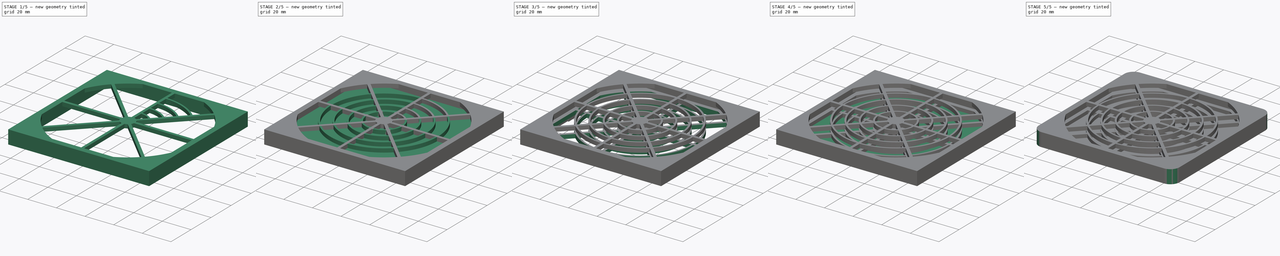
[diagram: build sequence overview — one tinted view per stage of 5, left to right]
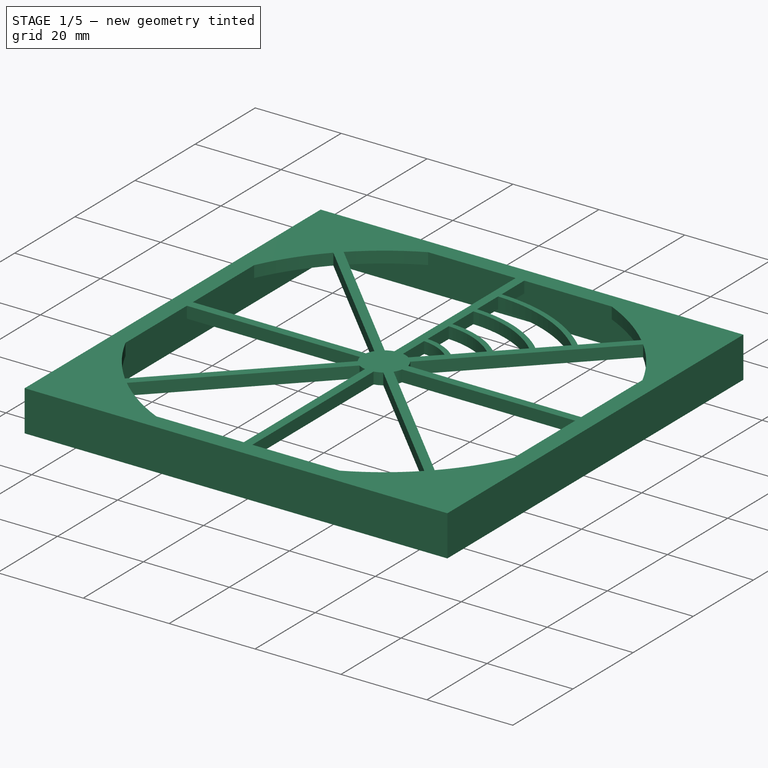
[diagram: stage 1 of 5 — iso view after this stage's code; geometry added in this stage tinted green]
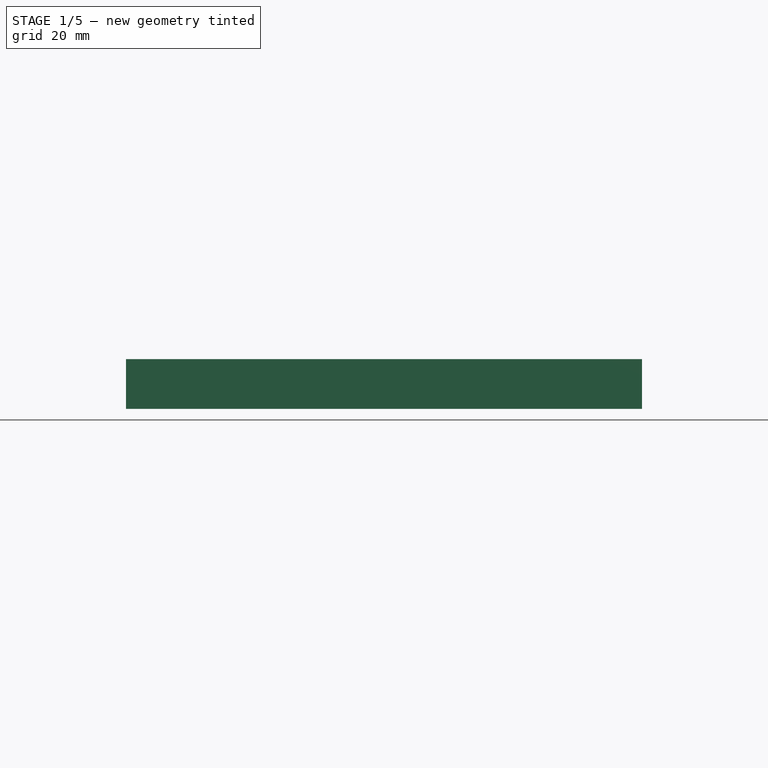
[diagram: stage 1 of 5 — front view after this stage's code; geometry added in this stage tinted green]
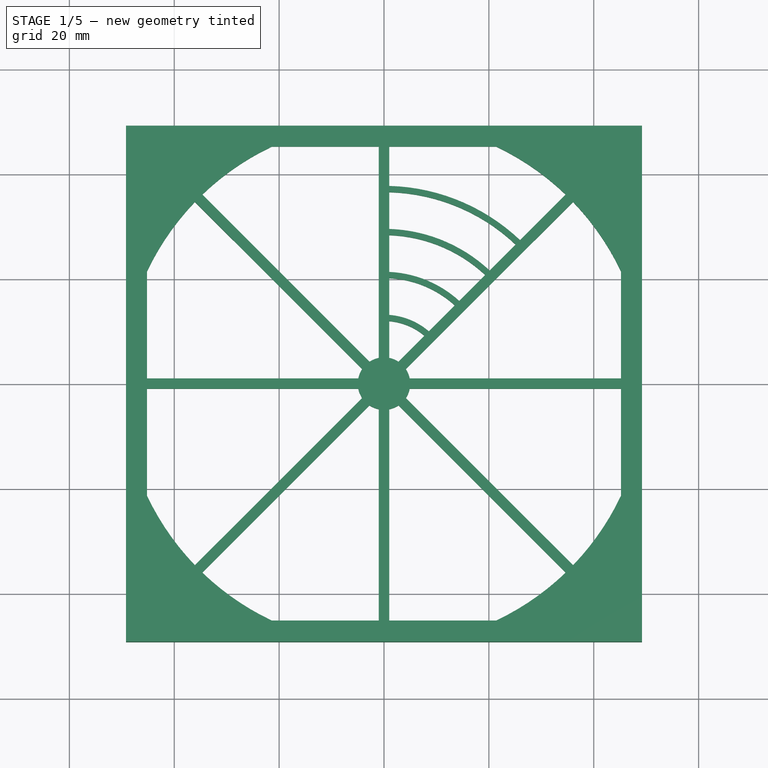
[diagram: stage 1 of 5 — top view after this stage's code; geometry added in this stage tinted green]
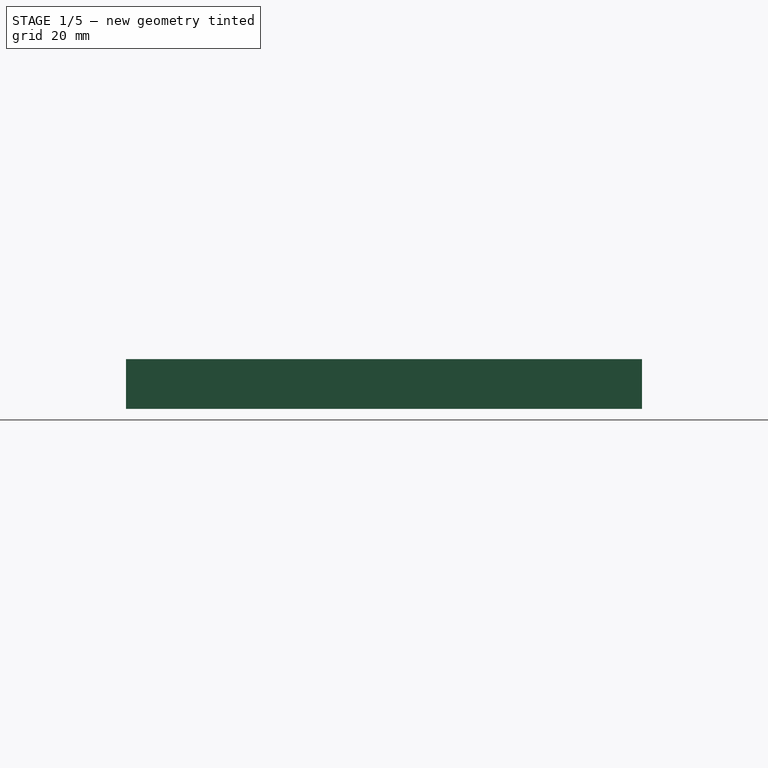
[diagram: stage 1 of 5 — right view after this stage's code; geometry added in this stage tinted green]
FCSTD DOCUMENT  (FreeCAD 0.20R)
Label: FAN_FILTER_92mm
License: Public Domain
LicenseURL: http://en.wikipedia.org/wiki/Public_domain
objects: Sketcher::SketchObject×13, PartDesign::Pad×7, PartDesign::PolarPattern×7, PartDesign::Pocket×6, PartDesign::Fillet×4, PartDesign::Body×3, PartDesign::Chamfer×2, App::Part×1
note: 61 computed .brp shape members not serialized (recipe doc carries the construction recipe); baked Part::Feature solids carry a one-line shape summary decoded from their .brp

FEATURE [PartDesign::Body] Body300  label="Base"
  Group = -> [Sketch1066,Pad527,Sketch1067,Pocket512,Sketch1068,Pocket513,PolarPattern027,Sketch1069,Pad528,PolarPattern029,Sketch1070,Pocket514,Sketch1071,Pad529,PolarPattern030,Chamfer173,Fillet180]
  Origin = -> Origin524
  Tip = -> Fillet180
FEATURE [Sketcher::SketchObject] Sketch1072
  FullyConstrained = true
  MapMode = 5
  Support = -> [XY_Plane526]
  sketch-geometry (6):
    g0: LineSegment StartX=-49.2 StartY=49.2 StartZ=0 EndX=-49.2 EndY=-49.2 EndZ=0
    g1: LineSegment StartX=-49.2 StartY=-49.2 StartZ=0 EndX=49.2 EndY=-49.2 EndZ=0
    g2: LineSegment StartX=49.2 StartY=-49.2 StartZ=0 EndX=49.2 EndY=49.2 EndZ=0
    g3: LineSegment StartX=49.2 StartY=49.2 StartZ=0 EndX=-49.2 EndY=49.2 EndZ=0
    g4: GeomPoint X=0 Y=0 Z=0
    g5: GeomPoint X=0 Y=0 Z=0
  constraints (13):
    c: Coincident(g0,g1)
    c: Coincident(g1,g2)
    c: Coincident(g2,g3)
    c: Coincident(g3,g0)
    c: Horizontal(g1)
    c: Horizontal(g3)
    c: Vertical(g0)
    c: Vertical(g2)
    c: Symmetric(g1,g0,g4)
    c: Coincident(g4,g-1)
    c: Equal(g2,g3)
    c: DistanceY(g2,g2) = 98.4
    c: Coincident(g5,g4)
FEATURE [PartDesign::Pad] Pad526
  Direction = (0,0,1)
  Length = 9.5
  Length2 = 10
  Profile = -> Sketch1072
  ReferenceAxis = -> Sketch1072 [N_Axis]
  Type = 0
FEATURE [Sketcher::SketchObject] Sketch1073
  ExternalGeometry = -> [Pad526]
  FullyConstrained = true
  MapMode = 5
  Placement = pos=(0,0,0) rot=(1,0,0;3.14159rad)
  Support = -> [Pad526]
  sketch-geometry (4):
    g0: LineSegment StartX=-47.2 StartY=47.2 StartZ=0 EndX=0 EndY=47.2 EndZ=0
    g1: LineSegment StartX=-47.2 StartY=0 StartZ=0 EndX=-47.2 EndY=47.2 EndZ=0
    g2: LineSegment StartX=-47.2 StartY=0 StartZ=0 EndX=0 EndY=0 EndZ=0
    g3: LineSegment StartX=0 StartY=47.2 StartZ=0 EndX=0 EndY=0 EndZ=0
  constraints (11):
    c: Horizontal(g0)
    c: Coincident(g1,g0)
    c: Equal(g1,g0)
    c: PointOnObject(g3,g-2)
    c: PointOnObject(g2,g-1)
    c: Coincident(g2,g-1)
    c: Coincident(g3,g2)
    c: Equal(g2,g3)
    c: DistanceX(g-3,g0) = 2
    c: Coincident(g1,g2)
    c: Coincident(g0,g3)
FEATURE [PartDesign::Pocket] Pocket515  label="Бортик005"
  BaseFeature = -> Pad526
  Direction = (0,0,1)
  Length = 6.8
  Length2 = 5
  Profile = -> Sketch1073
  ReferenceAxis = -> Sketch1073 [N_Axis]
  Type = 0
FEATURE [Sketcher::SketchObject] Sketch1074
  ExternalGeometry = -> [Pocket515]
  FullyConstrained = true
  MapMode = 5
  Placement = pos=(0,0,0) rot=(0,1,0;3.14159rad)
  Support = -> [XY_Plane526]
  sketch-geometry (12):
    g0: ArcOfCircle CenterX=0 CenterY=0 CenterZ=0 NormalX=0 NormalY=0 NormalZ=1 AngleXU=0 Radius=50 StartAngle=5.15415 EndAngle=5.47779
    g1: LineSegment StartX=4.89898 StartY=-1 StartZ=0 EndX=45.2 EndY=-1 EndZ=0
    g2: LineSegment StartX=45.2 StartY=-1 StartZ=0 EndX=45.2 EndY=-21.3766 EndZ=0
    g3: LineSegment StartX=21.3766 StartY=-45.2 StartZ=0 EndX=1 EndY=-45.2 EndZ=0
    g4: LineSegment StartX=1 StartY=-4.89898 StartZ=0 EndX=1 EndY=-45.2 EndZ=0
    g5: ArcOfCircle CenterX=0 CenterY=0 CenterZ=0 NormalX=0 NormalY=0 NormalZ=1 AngleXU=0 Radius=5 StartAngle=4.91375 EndAngle=5.29643
    g6: LineSegment StartX=2.75699 StartY=-4.17121 StartZ=0 EndX=34.6412 EndY=-36.0554 EndZ=0
    g7: LineSegment StartX=4.17121 StartY=-2.75699 StartZ=0 EndX=36.0554 EndY=-34.6412 EndZ=0
    g8: ArcOfCircle CenterX=0 CenterY=0 CenterZ=0 NormalX=0 NormalY=0 NormalZ=1 AngleXU=0 Radius=5 StartAngle=5.69915 EndAngle=6.08183
    g9: ArcOfCircle CenterX=0 CenterY=0 CenterZ=0 NormalX=0 NormalY=0 NormalZ=1 AngleXU=0 Radius=50 StartAngle=5.51779 EndAngle=5.84142
    g10: LineSegment StartX=0 StartY=0 StartZ=0 EndX=35.3483 EndY=-35.3483 EndZ=0
    g11: LineSegment StartX=34.6412 StartY=-36.0554 StartZ=0 EndX=36.0554 EndY=-34.6412 EndZ=0
  constraints (34):
    c: Coincident(g0,g-1)
    c: Coincident(g2,g1)
    c: Coincident(g2,g9)
    c: Vertical(g2)
    c: Coincident(g3,g0)
    c: Horizontal(g3)
    c: Coincident(g4,g3)
    c: Radius(g0) = 50
    c: Coincident(g5,g0)
    c: Coincident(g4,g5)
    c: Coincident(g1,g8)
    c: Radius(g5) = 5
    c: Equal(g1,g4)
    c: Vertical(g4)
    c: DistanceX(g0,g4) = 1
    c: Horizontal(g1)
    c: Equal(g3,g2)
    c: Parallel(g6,g7)
    c: Equal(g5,g8)
    c: Coincident(g5,g6)
    c: Coincident(g8,g7)
    c: Coincident(g5,g8)
    c: Coincident(g0,g6)
    c: Coincident(g9,g7)
    c: Coincident(g0,g9)
    c: Distance(g0,g7) = 2
    c: Coincident(g10,g0)
    c: Angle(g10) = -0.785398
    c: Symmetric(g0,g7,g10)
    c: Coincident(g11,g0)
    c: Coincident(g11,g7)
    c: Perpendicular(g10,g11)
    c: Parallel(g10,g7)
    c: DistanceX(g1,g-3) = 2
FEATURE [PartDesign::Pocket] Pocket511  label="Вырез сектора004"
  BaseFeature = -> Pocket515
  Direction = (0,0,1)
  Length = 5
  Length2 = 5
  Profile = -> Sketch1074
  ReferenceAxis = -> Sketch1074 [N_Axis]
  Refine = true
  Type = 1
FEATURE [PartDesign::PolarPattern] PolarPattern028
  Angle = 360
  Axis = -> Sketch1073 [N_Axis]
  BaseFeature = -> Pocket511
  Occurrences = 4
  Originals = -> [Pocket515,Pocket511]
  Refine = true
FEATURE [Sketcher::SketchObject] Sketch1075
  ExternalGeometry = -> [PolarPattern028]
  FullyConstrained = true
  MapMode = 5
  Placement = pos=(0,0,6.8) rot=(1,0,0;3.14159rad)
  Support = -> [PolarPattern028]
  sketch-geometry (20):
    g0: ArcOfCircle CenterX=0 CenterY=0 CenterZ=0 NormalX=0 NormalY=0 NormalZ=1 AngleXU=0 Radius=20.1238 StartAngle=4.7621 EndAngle=5.44807
    g1: ArcOfCircle CenterX=0 CenterY=0 CenterZ=0 NormalX=0 NormalY=0 NormalZ=1 AngleXU=0 Radius=21.3224 StartAngle=4.75931 EndAngle=5.45087
    g2: ArcOfCircle CenterX=0 CenterY=0 CenterZ=0 NormalX=0 NormalY=0 NormalZ=1 AngleXU=0 Radius=28.3166 StartAngle=4.74771 EndAngle=5.46246
    g3: ArcOfCircle CenterX=0 CenterY=0 CenterZ=0 NormalX=0 NormalY=0 NormalZ=1 AngleXU=0 Radius=29.5159 StartAngle=4.74628 EndAngle=5.4639
    g4: ArcOfCircle CenterX=0 CenterY=0 CenterZ=0 NormalX=0 NormalY=0 NormalZ=1 AngleXU=0 Radius=36.5127 StartAngle=4.73978 EndAngle=5.4704
    g5: ArcOfCircle CenterX=0 CenterY=0 CenterZ=0 NormalX=0 NormalY=0 NormalZ=1 AngleXU=0 Radius=37.7122 StartAngle=4.73891 EndAngle=5.47127
    g6: LineSegment StartX=1 StartY=-20.099 StartZ=0 EndX=1 EndY=-21.299 EndZ=0
    g7: LineSegment StartX=13.505 StartY=-14.9192 StartZ=0 EndX=14.3535 EndY=-15.7678 EndZ=0
    g8: LineSegment StartX=1 StartY=-28.299 StartZ=0 EndX=1 EndY=-29.499 EndZ=0
    g9: LineSegment StartX=19.3033 StartY=-20.7175 StartZ=0 EndX=20.1518 EndY=-21.566 EndZ=0
    g10: LineSegment StartX=1 StartY=-36.499 StartZ=0 EndX=1 EndY=-37.699 EndZ=0
    g11: LineSegment StartX=25.1016 StartY=-26.5158 StartZ=0 EndX=25.9501 EndY=-27.3643 EndZ=0
    g12: LineSegment StartX=1 StartY=-21.299 StartZ=0 EndX=1 EndY=-28.299 EndZ=0
    g13: LineSegment StartX=1 StartY=-29.499 StartZ=0 EndX=1 EndY=-36.499 EndZ=0
    g14: ArcOfCircle CenterX=0 CenterY=0 CenterZ=0 NormalX=0 NormalY=0 NormalZ=1 AngleXU=0 Radius=13.1371 StartAngle=4.78858 EndAngle=5.42159
    g15: ArcOfCircle CenterX=0 CenterY=0 CenterZ=0 NormalX=0 NormalY=0 NormalZ=1 AngleXU=0 Radius=11.9409 StartAngle=4.79623 EndAngle=5.41394
    g16: LineSegment StartX=7.70674 StartY=-9.12096 StartZ=0 EndX=8.55527 EndY=-9.96948 EndZ=0
    g17: LineSegment StartX=1 StartY=-13.099 StartZ=0 EndX=1 EndY=-11.899 EndZ=0
    g18: LineSegment StartX=1 StartY=-4.89898 StartZ=0 EndX=1 EndY=-11.899 EndZ=0
    g19: LineSegment StartX=1 StartY=-13.099 StartZ=0 EndX=1 EndY=-20.099 EndZ=0
  constraints (56):
    c: Coincident(g0,g-1)
    c: Coincident(g1,g0)
    c: Coincident(g2,g0)
    c: Coincident(g3,g0)
    c: Coincident(g4,g0)
    c: Coincident(g5,g0)
    c: Coincident(g6,g0)
    c: Coincident(g6,g1)
    c: Coincident(g7,g0)
    c: Coincident(g7,g1)
    c: Coincident(g8,g2)
    c: Coincident(g8,g3)
    c: Coincident(g9,g2)
    c: Coincident(g9,g3)
    c: Coincident(g10,g4)
    c: Coincident(g10,g5)
    c: Coincident(g11,g4)
    c: Coincident(g11,g5)
    c: Equal(g6,g8)
    c: Equal(g8,g10)
    c: DistanceY(g6,g6) = 1.2
    c: Coincident(g12,g1)
    c: Coincident(g12,g2)
    c: Coincident(g13,g3)
    c: Coincident(g13,g4)
    c: Equal(g12,g13)
    c: Vertical(g6)
    c: Vertical(g12)
    c: Vertical(g8)
    c: Vertical(g13)
    c: Vertical(g10)
    c: PointOnObject(g0,g-3)
    c: PointOnObject(g1,g-3)
    c: PointOnObject(g2,g-3)
    c: PointOnObject(g3,g-3)
    c: PointOnObject(g4,g-3)
    c: PointOnObject(g5,g-3)
    c: Coincident(g14,g0)
    c: PointOnObject(g14,g-4)
    c: PointOnObject(g14,g-3)
    c: Coincident(g15,g0)
    c: PointOnObject(g15,g-4)
    c: PointOnObject(g15,g-3)
    c: Coincident(g16,g15)
    c: Coincident(g16,g14)
    c: Coincident(g17,g14)
    c: Coincident(g17,g15)
    c: PointOnObject(g0,g-4)
    c: Equal(g6,g17)
    c: Coincident(g18,g-4)
    c: Coincident(g18,g15)
    c: Coincident(g19,g14)
    c: Coincident(g19,g0)
    c: Equal(g19,g18)
    c: Equal(g12,g19)
    c: DistanceY(g18,g18) = 7
FEATURE [PartDesign::Pad] Pad530  label="Сектор решётки005"
  BaseFeature = -> PolarPattern028
  Direction = (0,0,-1)
  Length = 10
  Length2 = 10
  Profile = -> Sketch1075
  ReferenceAxis = -> Sketch1075 [N_Axis]
  Reversed = true
  Type = 3
  UpToFace = -> PolarPattern028 [Face5]
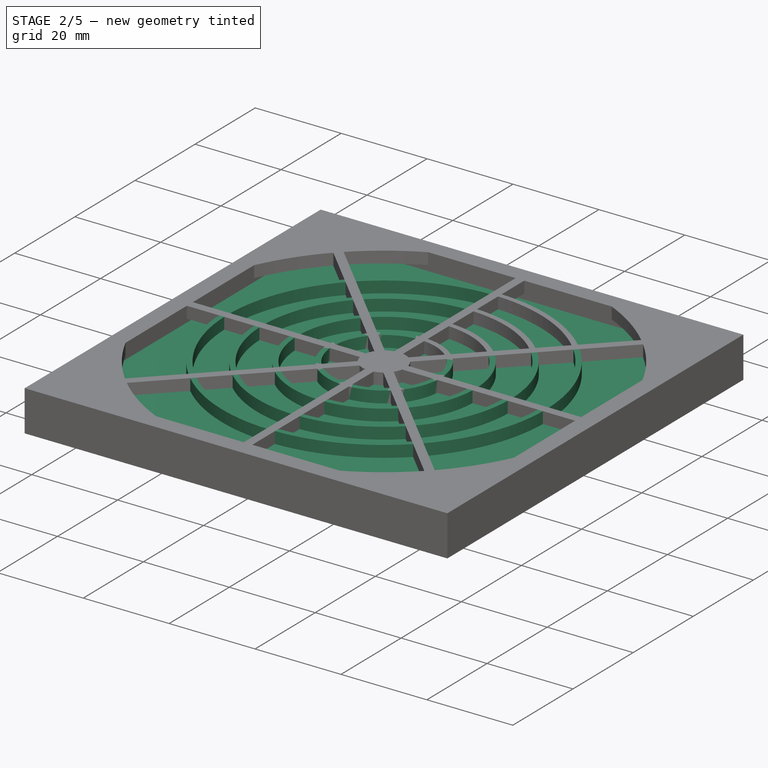
[diagram: stage 2 of 5 — iso view after this stage's code; geometry added in this stage tinted green]
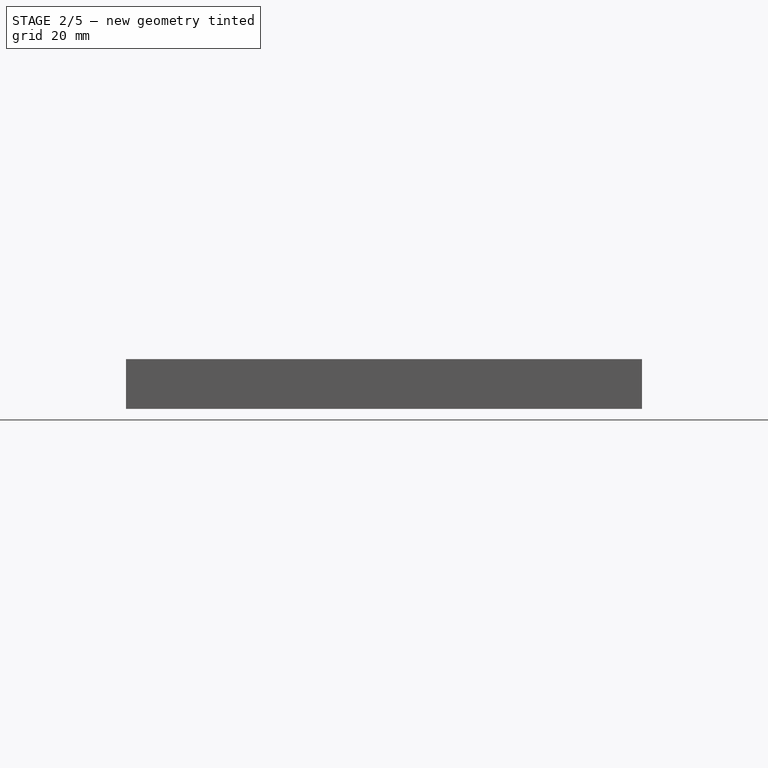
[diagram: stage 2 of 5 — front view after this stage's code; geometry added in this stage tinted green]
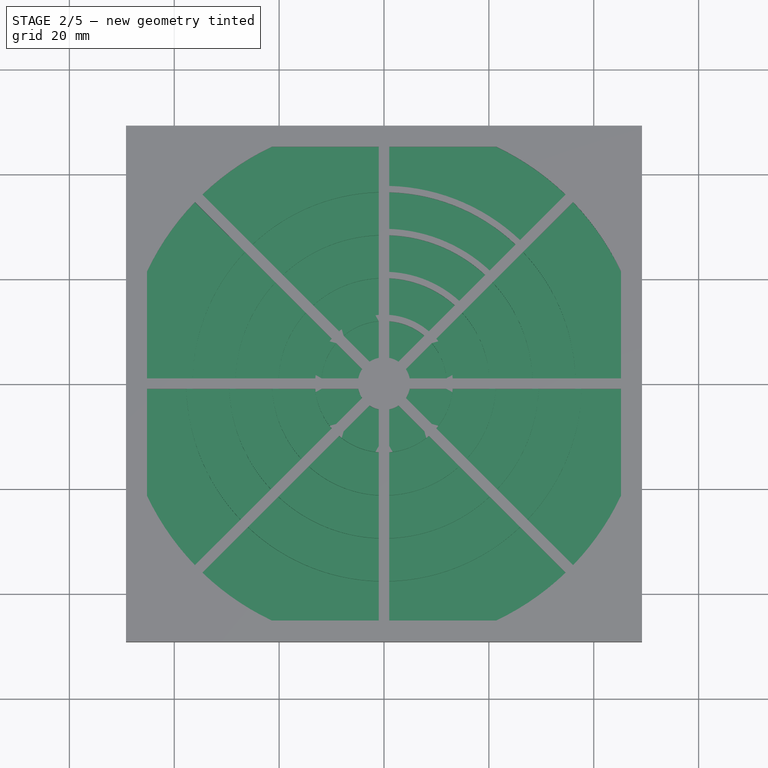
[diagram: stage 2 of 5 — top view after this stage's code; geometry added in this stage tinted green]
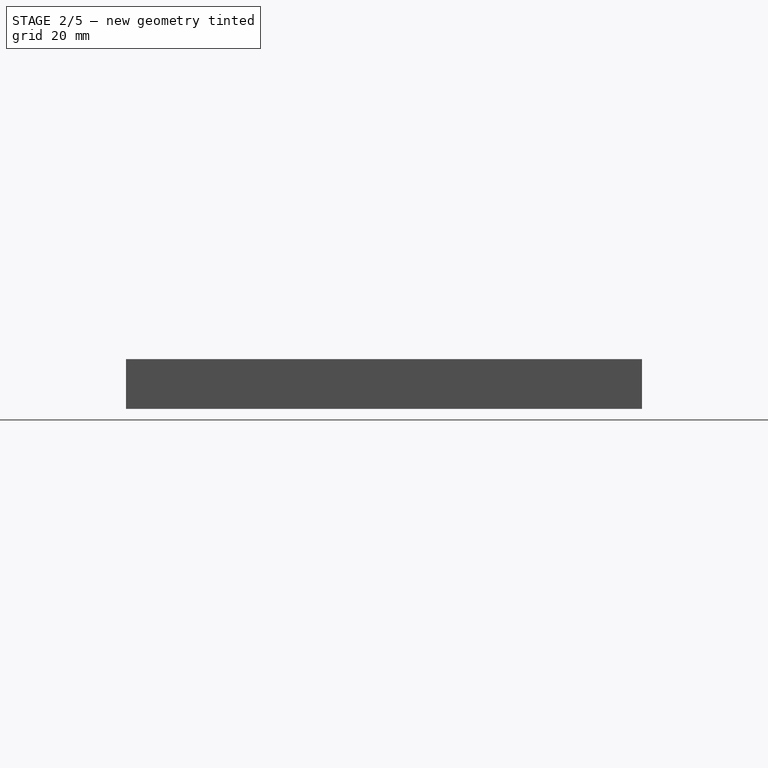
[diagram: stage 2 of 5 — right view after this stage's code; geometry added in this stage tinted green]
FEATURE [Sketcher::SketchObject] Sketch1066
  FullyConstrained = true
  MapMode = 5
  Support = -> [XY_Plane524]
  sketch-geometry (6):
    g0: LineSegment StartX=-47 StartY=47 StartZ=0 EndX=-47 EndY=-47 EndZ=0
    g1: LineSegment StartX=-47 StartY=-47 StartZ=0 EndX=47 EndY=-47 EndZ=0
    g2: LineSegment StartX=47 StartY=-47 StartZ=0 EndX=47 EndY=47 EndZ=0
    g3: LineSegment StartX=47 StartY=47 StartZ=0 EndX=-47 EndY=47 EndZ=0
    g4: GeomPoint X=2e-16 Y=0 Z=0
    g5: GeomPoint X=2e-16 Y=0 Z=0
  constraints (13):
    c: Coincident(g0,g1)
    c: Coincident(g1,g2)
    c: Coincident(g2,g3)
    c: Coincident(g3,g0)
    c: Horizontal(g1)
    c: Horizontal(g3)
    c: Vertical(g0)
    c: Vertical(g2)
    c: Symmetric(g1,g0,g4)
    c: Coincident(g4,g-1)
    c: Equal(g2,g3)
    c: DistanceY(g2,g2) = 94
    c: Coincident(g5,g4)
FEATURE [PartDesign::Pad] Pad527
  Direction = (0,0,1)
  Length = 4.5
  Length2 = 10
  Profile = -> Sketch1066
  ReferenceAxis = -> Sketch1066 [N_Axis]
  Type = 0
FEATURE [Sketcher::SketchObject] Sketch1067
  ExternalGeometry = -> [Pad527]
  FullyConstrained = true
  MapMode = 5
  Placement = pos=(0,0,0) rot=(1,0,0;3.14159rad)
  Support = -> [Pad527]
  sketch-geometry (16):
    g0: LineSegment StartX=-45 StartY=45 StartZ=0 EndX=-8 EndY=45 EndZ=0
    g1: LineSegment StartX=-45 StartY=8 StartZ=0 EndX=-45 EndY=45 EndZ=0
    g2: LineSegment StartX=-45 StartY=8 StartZ=0 EndX=-44.2 EndY=8 EndZ=0
    g3: LineSegment StartX=-8 StartY=45 StartZ=0 EndX=-8 EndY=44.2 EndZ=0
    g4: LineSegment StartX=-8 StartY=44.2 StartZ=0 EndX=0 EndY=44.2 EndZ=0
    g5: LineSegment StartX=-44.2 StartY=8 StartZ=0 EndX=-44.2 EndY=0 EndZ=0
    g6: LineSegment StartX=-44.2 StartY=0 StartZ=0 EndX=0 EndY=0 EndZ=0
    g7: LineSegment StartX=0 StartY=44.2 StartZ=0 EndX=0 EndY=0 EndZ=0
    g8: LineSegment StartX=-47 StartY=6.8 StartZ=0 EndX=-45.8 EndY=6.8 EndZ=0
    g9: LineSegment StartX=-45.8 StartY=6.8 StartZ=0 EndX=-45.8 EndY=0 EndZ=0
    g10: LineSegment StartX=-45.8 StartY=0 StartZ=0 EndX=-47 EndY=0 EndZ=0
    g11: LineSegment StartX=-47 StartY=0 StartZ=0 EndX=-47 EndY=6.8 EndZ=0
    g12: LineSegment StartX=-6.8 StartY=47 StartZ=0 EndX=-6.8 EndY=45.8 EndZ=0
    g13: LineSegment StartX=-6.8 StartY=45.8 StartZ=0 EndX=0 EndY=45.8 EndZ=0
    g14: LineSegment StartX=-6.8 StartY=47 StartZ=0 EndX=0 EndY=47 EndZ=0
    g15: LineSegment StartX=0 StartY=47 StartZ=0 EndX=0 EndY=45.8 EndZ=0
  constraints (47):
    c: Horizontal(g0)
    c: Coincident(g1,g0)
    c: Equal(g1,g0)
    c: Coincident(g2,g1)
    c: Coincident(g3,g0)
    c: Vertical(g3)
    c: Coincident(g4,g3)
    c: PointOnObject(g4,g-2)
    c: Horizontal(g4)
    c: Coincident(g5,g2)
    c: PointOnObject(g5,g-1)
    c: Vertical(g5)
    c: Coincident(g6,g5)
    c: Coincident(g6,g-1)
    c: Coincident(g7,g4)
    c: Coincident(g7,g6)
    c: Horizontal(g2)
    c: Equal(g6,g7)
    c: Vertical(g1)
    c: Equal(g2,g3)
    c: DistanceY(g5,g5) = 8
    c: DistanceX(g-3,g0) = 2
    c: PointOnObject(g8,g-3)
    c: Horizontal(g8)
    c: Coincident(g9,g8)
    c: PointOnObject(g9,g-1)
    c: Vertical(g9)
    c: Coincident(g10,g9)
    c: PointOnObject(g10,g-3)
    c: Coincident(g11,g10)
    c: Coincident(g11,g8)
    c: DistanceY(g8,g1) = 1.2
    c: Horizontal(g10)
    c: DistanceX(g2,g2) = 0.8
    c: DistanceX(g8,g8) = 1.2
    c: Vertical(g12)
    c: Coincident(g13,g12)
    c: PointOnObject(g13,g-2)
    c: Horizontal(g13)
    c: PointOnObject(g14,g-2)
    c: Horizontal(g14)
    c: Coincident(g15,g14)
    c: Coincident(g15,g13)
    c: Coincident(g12,g14)
    c: Equal(g15,g10)
    c: Horizontal(g12,g-3)
    c: Equal(g14,g9)
FEATURE [PartDesign::Pocket] Pocket512  label="Бортик004"
  BaseFeature = -> Pad527
  Direction = (0,0,1)
  Length = 1.8
  Length2 = 5
  Profile = -> Sketch1067
  ReferenceAxis = -> Sketch1067 [N_Axis]
  Type = 0
FEATURE [PartDesign::PolarPattern] PolarPattern031
  Angle = 360
  Axis = -> Sketch1075 [N_Axis]
  BaseFeature = -> Pad530
  Occurrences = 8
  Originals = -> [Pad530]
  Refine = true
FEATURE [Sketcher::SketchObject] Sketch1076
  ExternalGeometry = -> [PolarPattern031]
  FullyConstrained = true
  MapMode = 5
  Placement = pos=(0,0,6.8) rot=(1,0,0;3.14159rad)
  Support = -> [PolarPattern031]
  sketch-geometry (3):
    g0: ArcOfCircle CenterX=0 CenterY=0 CenterZ=0 NormalX=0 NormalY=0 NormalZ=1 AngleXU=0 Radius=52 StartAngle=2.00384 EndAngle=2.70855
    g1: LineSegment StartX=-47.2 StartY=21.8211 StartZ=0 EndX=-47.2 EndY=47.2 EndZ=0
    g2: LineSegment StartX=-47.2 StartY=47.2 StartZ=0 EndX=-21.8211 EndY=47.2 EndZ=0
  constraints (8):
    c: Coincident(g0,g-1)
    c: Coincident(g1,g0)
    c: Vertical(g1)
    c: Coincident(g2,g1)
    c: Coincident(g2,g0)
    c: Horizontal(g2)
    c: Coincident(g1,g-3)
    c: Radius(g0) = 52
FEATURE [PartDesign::Pocket] Pocket516  label="Углубление в углу002"
  BaseFeature = -> PolarPattern031
  Direction = (0,0,1)
  Length = 1
  Length2 = 5
  Profile = -> Sketch1076
  ReferenceAxis = -> Sketch1076 [N_Axis]
  Type = 0
FEATURE [PartDesign::PolarPattern] PolarPattern032
  Angle = 360
  Axis = -> Sketch1076 [N_Axis]
  BaseFeature = -> Pocket516
  Occurrences = 4
  Originals = -> [Pocket516]
  Refine = true
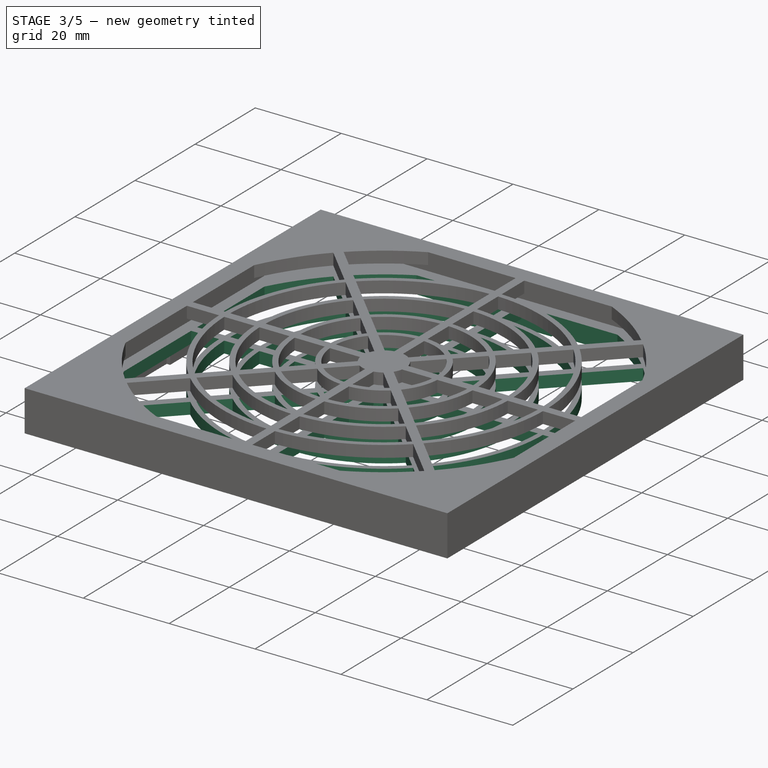
[diagram: stage 3 of 5 — iso view after this stage's code; geometry added in this stage tinted green]
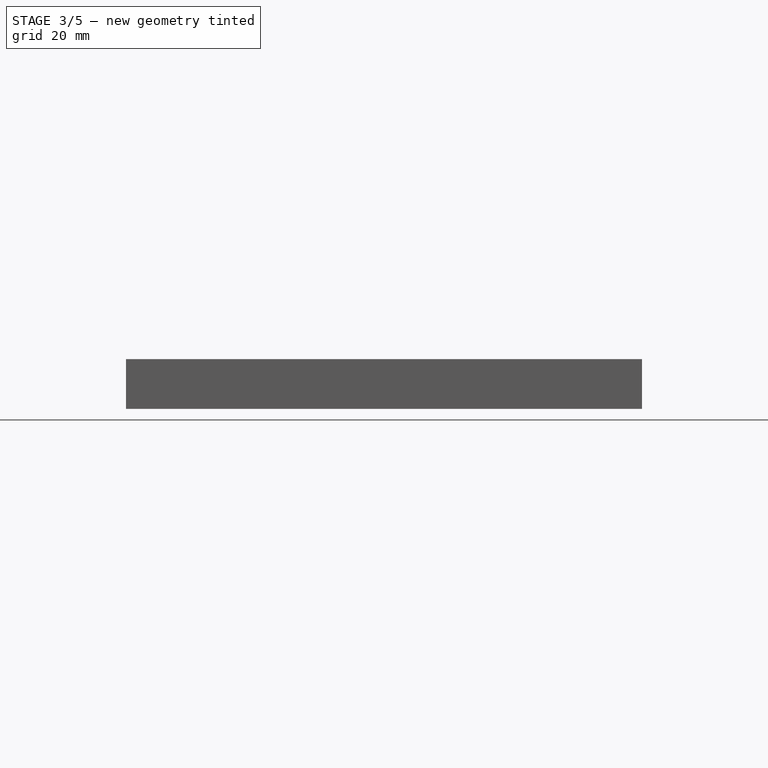
[diagram: stage 3 of 5 — front view after this stage's code; geometry added in this stage tinted green]
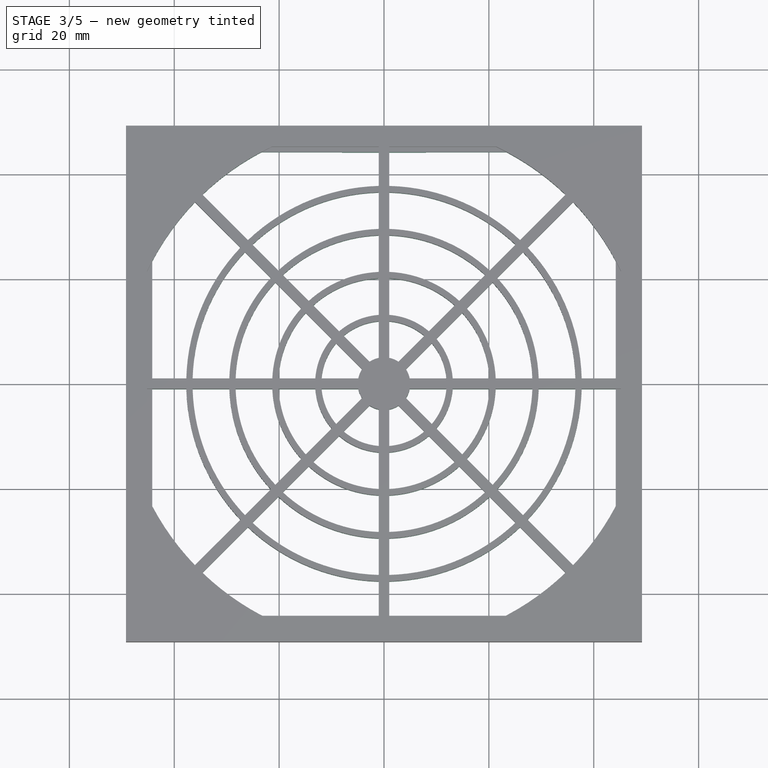
[diagram: stage 3 of 5 — top view after this stage's code; geometry added in this stage tinted green]
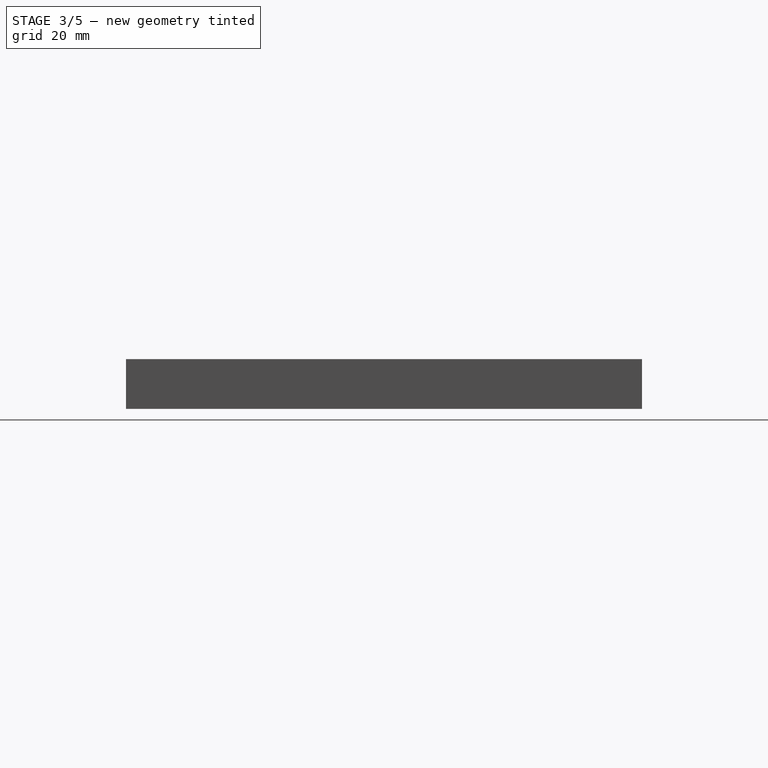
[diagram: stage 3 of 5 — right view after this stage's code; geometry added in this stage tinted green]
FEATURE [Sketcher::SketchObject] Sketch1068
  ExternalGeometry = -> [Pocket512]
  FullyConstrained = true
  MapMode = 5
  Placement = pos=(0,0,0) rot=(0,1,0;3.14159rad)
  Support = -> [XY_Plane524]
  sketch-geometry (12):
    g0: ArcOfCircle CenterX=0 CenterY=0 CenterZ=0 NormalX=0 NormalY=0 NormalZ=1 AngleXU=0 Radius=50 StartAngle=5.19883 EndAngle=5.47779
    g1: LineSegment StartX=4.89898 StartY=-1 StartZ=0 EndX=44.2 EndY=-1 EndZ=0
    g2: LineSegment StartX=44.2 StartY=-1 StartZ=0 EndX=44.2 EndY=-23.3743 EndZ=0
    g3: LineSegment StartX=1 StartY=-4.89898 StartZ=0 EndX=1 EndY=-44.2 EndZ=0
    g4: ArcOfCircle CenterX=0 CenterY=0 CenterZ=0 NormalX=0 NormalY=0 NormalZ=1 AngleXU=0 Radius=5 StartAngle=4.91375 EndAngle=5.29643
    g5: LineSegment StartX=2.75699 StartY=-4.17121 StartZ=0 EndX=34.6412 EndY=-36.0554 EndZ=0
    g6: LineSegment StartX=4.17121 StartY=-2.75699 StartZ=0 EndX=36.0554 EndY=-34.6412 EndZ=0
    g7: ArcOfCircle CenterX=0 CenterY=0 CenterZ=0 NormalX=0 NormalY=0 NormalZ=1 AngleXU=0 Radius=5 StartAngle=5.69915 EndAngle=6.08183
    g8: ArcOfCircle CenterX=0 CenterY=0 CenterZ=0 NormalX=0 NormalY=0 NormalZ=1 AngleXU=0 Radius=50 StartAngle=5.51779 EndAngle=5.79674
    g9: LineSegment StartX=0 StartY=0 StartZ=0 EndX=35.3483 EndY=-35.3483 EndZ=0
    g10: LineSegment StartX=34.6412 StartY=-36.0554 StartZ=0 EndX=36.0554 EndY=-34.6412 EndZ=0
    g11: LineSegment StartX=1 StartY=-44.2 StartZ=0 EndX=23.3743 EndY=-44.2 EndZ=0
  constraints (34):
    c: Coincident(g0,g-1)
    c: Coincident(g2,g1)
    c: Vertical(g2)
    c: Coincident(g4,g0)
    c: Coincident(g3,g4)
    c: Coincident(g1,g7)
    c: Radius(g4) = 5
    c: Equal(g1,g3)
    c: Vertical(g3)
    c: Horizontal(g1)
    c: Parallel(g5,g6)
    c: Equal(g4,g7)
    c: Coincident(g4,g5)
    c: Coincident(g7,g6)
    c: Coincident(g4,g7)
    c: Coincident(g0,g5)
    c: Coincident(g8,g6)
    c: Coincident(g0,g8)
    c: Distance(g0,g6) = 2
    c: Coincident(g9,g0)
    c: Angle(g9) = -0.785398
    c: Symmetric(g0,g6,g9)
    c: Coincident(g10,g0)
    c: Coincident(g10,g6)
    c: Perpendicular(g9,g10)
    c: Parallel(g9,g6)
    c: Coincident(g11,g3)
    c: Horizontal(g11)
    c: DistanceY(g1,g0) = 1
    c: PointOnObject(g1,g-3)
    c: Coincident(g2,g8)
    c: Coincident(g11,g0)
    c: Equal(g11,g2)
    c: Radius(g0) = 50
FEATURE [PartDesign::Pocket] Pocket513  label="Вырез сектора005"
  BaseFeature = -> Pocket512
  Direction = (0,0,1)
  Length = 5
  Length2 = 5
  Profile = -> Sketch1068
  ReferenceAxis = -> Sketch1068 [N_Axis]
  Refine = true
  Type = 1
FEATURE [PartDesign::PolarPattern] PolarPattern027
  Angle = 360
  Axis = -> Sketch1067 [N_Axis]
  BaseFeature = -> Pocket513
  Occurrences = 4
  Originals = -> [Pocket512,Pocket513]
  Refine = true
FEATURE [Sketcher::SketchObject] Sketch1069
  ExternalGeometry = -> [PolarPattern027]
  FullyConstrained = true
  MapMode = 5
  Placement = pos=(0,0,1.8) rot=(1,0,0;3.14159rad)
  Support = -> [PolarPattern027]
  sketch-geometry (20):
    g0: ArcOfCircle CenterX=0 CenterY=0 CenterZ=0 NormalX=0 NormalY=0 NormalZ=1 AngleXU=0 Radius=21.3224 StartAngle=1.61771 EndAngle=2.30928
    g1: ArcOfCircle CenterX=0 CenterY=0 CenterZ=0 NormalX=0 NormalY=0 NormalZ=1 AngleXU=0 Radius=20.1238 StartAngle=1.62051 EndAngle=2.30648
    g2: ArcOfCircle CenterX=0 CenterY=0 CenterZ=0 NormalX=0 NormalY=0 NormalZ=1 AngleXU=0 Radius=28.3166 StartAngle=1.60612 EndAngle=2.32087
    g3: ArcOfCircle CenterX=0 CenterY=0 CenterZ=0 NormalX=0 NormalY=0 NormalZ=1 AngleXU=0 Radius=29.5159 StartAngle=1.60468 EndAngle=2.32231
    g4: ArcOfCircle CenterX=0 CenterY=0 CenterZ=0 NormalX=0 NormalY=0 NormalZ=1 AngleXU=0 Radius=36.5127 StartAngle=1.59819 EndAngle=2.3288
    g5: ArcOfCircle CenterX=0 CenterY=0 CenterZ=0 NormalX=0 NormalY=0 NormalZ=1 AngleXU=0 Radius=37.7122 StartAngle=1.59732 EndAngle=2.32967
    g6: LineSegment StartX=-1 StartY=21.299 StartZ=0 EndX=-1 EndY=20.099 EndZ=0
    g7: LineSegment StartX=-14.3535 StartY=15.7678 StartZ=0 EndX=-13.505 EndY=14.9192 EndZ=0
    g8: LineSegment StartX=-1 StartY=28.299 StartZ=0 EndX=-1 EndY=29.499 EndZ=0
    g9: LineSegment StartX=-19.3033 StartY=20.7175 StartZ=0 EndX=-20.1518 EndY=21.566 EndZ=0
    g10: LineSegment StartX=-1 StartY=36.499 StartZ=0 EndX=-1 EndY=37.699 EndZ=0
    g11: LineSegment StartX=-25.1016 StartY=26.5158 StartZ=0 EndX=-25.9501 EndY=27.3643 EndZ=0
    g12: LineSegment StartX=-1 StartY=29.499 StartZ=0 EndX=-1 EndY=36.499 EndZ=0
    g13: LineSegment StartX=-1 StartY=28.299 StartZ=0 EndX=-1 EndY=21.299 EndZ=0
    g14: LineSegment StartX=-1 StartY=20.099 StartZ=0 EndX=-1 EndY=13.099 EndZ=0
    g15: ArcOfCircle CenterX=0 CenterY=0 CenterZ=0 NormalX=0 NormalY=0 NormalZ=1 AngleXU=0 Radius=13.1371 StartAngle=1.64699 EndAngle=2.28
    g16: ArcOfCircle CenterX=0 CenterY=0 CenterZ=0 NormalX=0 NormalY=0 NormalZ=1 AngleXU=0 Radius=11.9409 StartAngle=1.65464 EndAngle=2.27235
    g17: LineSegment StartX=-8.55527 StartY=9.96948 StartZ=0 EndX=-7.70674 EndY=9.12096 EndZ=0
    g18: LineSegment StartX=-1 StartY=13.099 StartZ=0 EndX=-1 EndY=11.899 EndZ=0
    g19: LineSegment StartX=-1 StartY=4.89898 StartZ=0 EndX=-1 EndY=11.899 EndZ=0
  constraints (56):
    c: Coincident(g0,g7)
    c: Coincident(g1,g7)
    c: Coincident(g2,g9)
    c: Coincident(g3,g9)
    c: Coincident(g4,g11)
    c: Coincident(g5,g11)
    c: Coincident(g4,g10)
    c: Coincident(g4,g12)
    c: Coincident(g5,g10)
    c: Coincident(g2,g8)
    c: Coincident(g3,g8)
    c: Coincident(g3,g12)
    c: Coincident(g1,g6)
    c: Coincident(g0,g6)
    c: Equal(g10,g8)
    c: Equal(g8,g6)
    c: Vertical(g10)
    c: Vertical(g12)
    c: Vertical(g8)
    c: Vertical(g6)
    c: Coincident(g0,g1)
    c: Coincident(g0,g2)
    c: Coincident(g0,g3)
    c: Coincident(g0,g4)
    c: Coincident(g0,g5)
    c: Coincident(g0,g-1)
    c: DistanceY(g8,g8) = 1.2
    c: Coincident(g13,g2)
    c: Coincident(g0,g13)
    c: Coincident(g1,g14)
    c: Equal(g13,g14)
    c: Equal(g14,g12)
    c: Vertical(g14)
    c: Vertical(g13)
    c: Coincident(g15,g0)
    c: Coincident(g15,g14)
    c: Coincident(g16,g0)
    c: Coincident(g17,g15)
    c: Coincident(g17,g16)
    c: Coincident(g18,g15)
    c: Coincident(g18,g16)
    c: Equal(g6,g18)
    c: Vertical(g18)
    c: PointOnObject(g4,g-3)
    c: PointOnObject(g5,g-3)
    c: PointOnObject(g3,g-3)
    c: PointOnObject(g2,g-3)
    c: PointOnObject(g0,g-3)
    c: PointOnObject(g1,g-3)
    c: PointOnObject(g15,g-3)
    c: PointOnObject(g16,g-3)
    c: Coincident(g19,g-4)
    c: Coincident(g19,g16)
    c: Equal(g19,g14)
    c: Vertical(g19)
    c: DistanceY(g19,g19) = 7
FEATURE [PartDesign::Pad] Pad528  label="Сектор решётки004"
  BaseFeature = -> PolarPattern027
  Direction = (0,0,-1)
  Length = 2
  Length2 = 10
  Profile = -> Sketch1069
  ReferenceAxis = -> Sketch1069 [N_Axis]
  Reversed = true
  Type = 3
  UpToFace = -> PolarPattern027 [Face6]
FEATURE [PartDesign::PolarPattern] PolarPattern029
  Angle = 360
  Axis = -> Sketch1069 [N_Axis]
  BaseFeature = -> Pad528
  Occurrences = 8
  Originals = -> [Pad528]
  Refine = true
FEATURE [Sketcher::SketchObject] Sketch1070
  FullyConstrained = true
  MapMode = 5
  Support = -> [XY_Plane524]
  sketch-geometry (9):
    g0: LineSegment StartX=-41.25 StartY=41.25 StartZ=0 EndX=-41.25 EndY=-41.25 EndZ=0
    g1: LineSegment StartX=-41.25 StartY=-41.25 StartZ=0 EndX=41.25 EndY=-41.25 EndZ=0
    g2: LineSegment StartX=41.25 StartY=-41.25 StartZ=0 EndX=41.25 EndY=41.25 EndZ=0
    g3: LineSegment StartX=41.25 StartY=41.25 StartZ=0 EndX=-41.25 EndY=41.25 EndZ=0
    g4: GeomPoint X=0 Y=0 Z=0
    g5: Circle CenterX=41.25 CenterY=-41.25 CenterZ=0 NormalX=0 NormalY=0 NormalZ=1 AngleXU=0 Radius=2.25
    g6: Circle CenterX=-41.25 CenterY=-41.25 CenterZ=0 NormalX=0 NormalY=0 NormalZ=1 AngleXU=0 Radius=2.25
    g7: Circle CenterX=-41.25 CenterY=41.25 CenterZ=0 NormalX=0 NormalY=0 NormalZ=1 AngleXU=0 Radius=2.25
    g8: Circle CenterX=41.25 CenterY=41.25 CenterZ=0 NormalX=0 NormalY=0 NormalZ=1 AngleXU=0 Radius=2.25
  constraints (20):
    c: Coincident(g0,g1)
    c: Coincident(g1,g2)
    c: Coincident(g2,g3)
    c: Coincident(g3,g0)
    c: Horizontal(g1)
    c: Horizontal(g3)
    c: Vertical(g0)
    c: Vertical(g2)
    c: Symmetric(g1,g0,g4)
    c: Coincident(g4,g-1)
    c: Equal(g1,g2)
    c: DistanceY(g2,g2) = 82.5
    c: Coincident(g5,g1)
    c: Coincident(g6,g0)
    c: Coincident(g7,g0)
    c: Coincident(g8,g2)
    c: Equal(g7,g6)
    c: Equal(g7,g5)
    c: Equal(g7,g8)
    c: Diameter(g7) = 4.5
FEATURE [PartDesign::Pocket] Pocket514  label="Отверстия под винты015"
  BaseFeature = -> PolarPattern029
  Direction = (0,0,-1)
  Length = 5
  Length2 = 5
  Midplane = true
  Profile = -> Sketch1070
  ReferenceAxis = -> Sketch1070 [N_Axis]
  Type = 1
FEATURE [Sketcher::SketchObject] Sketch1077
  ExternalGeometry = -> [PolarPattern032]
  FullyConstrained = true
  MapMode = 5
  Placement = pos=(0,0,0) rot=(1,0,0;1.5708rad)
  Support = -> [XZ_Plane526]
  sketch-geometry (3):
    g0: LineSegment StartX=47.2 StartY=1.05e-14 StartZ=0 EndX=47.2 EndY=2 EndZ=0
    g1: LineSegment StartX=47.2 StartY=2 StartZ=0 EndX=46.2 EndY=1.07e-14 EndZ=0
    g2: LineSegment StartX=46.2 StartY=1.05e-14 StartZ=0 EndX=47.2 EndY=1.05e-14 EndZ=0
  constraints (8):
    c: Coincident(g1,g0)
    c: Coincident(g2,g0)
    c: Horizontal(g2)
    c: DistanceY(g0,g0) = 2
    c: Coincident(g1,g2)
    c: DistanceX(g2,g2) = 1
    c: Vertical(g0)
    c: Coincident(g0,g-3)
FEATURE [PartDesign::Pad] Pad531  label="Защёлка002"
  BaseFeature = -> PolarPattern032
  Direction = (0,-1,-2e-16)
  Length = 11
  Length2 = 10
  Midplane = true
  Profile = -> Sketch1077
  ReferenceAxis = -> Sketch1077 [N_Axis]
  Type = 0
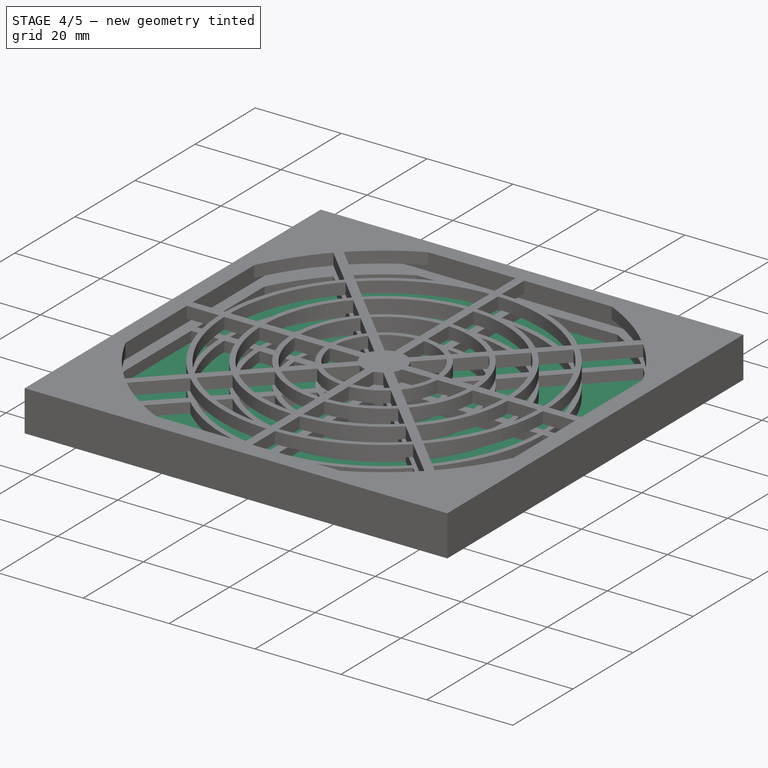
[diagram: stage 4 of 5 — iso view after this stage's code; geometry added in this stage tinted green]
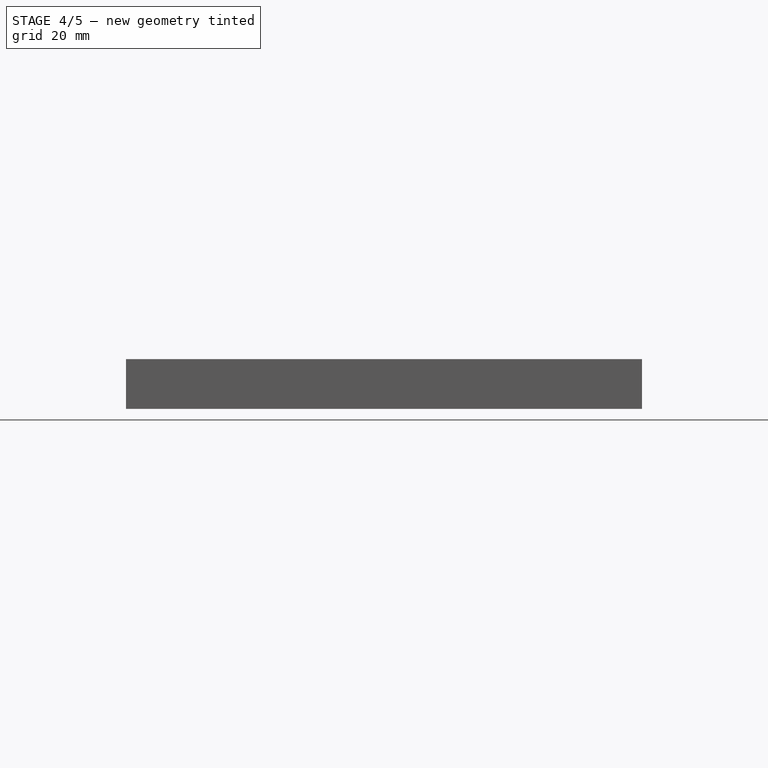
[diagram: stage 4 of 5 — front view after this stage's code; geometry added in this stage tinted green]
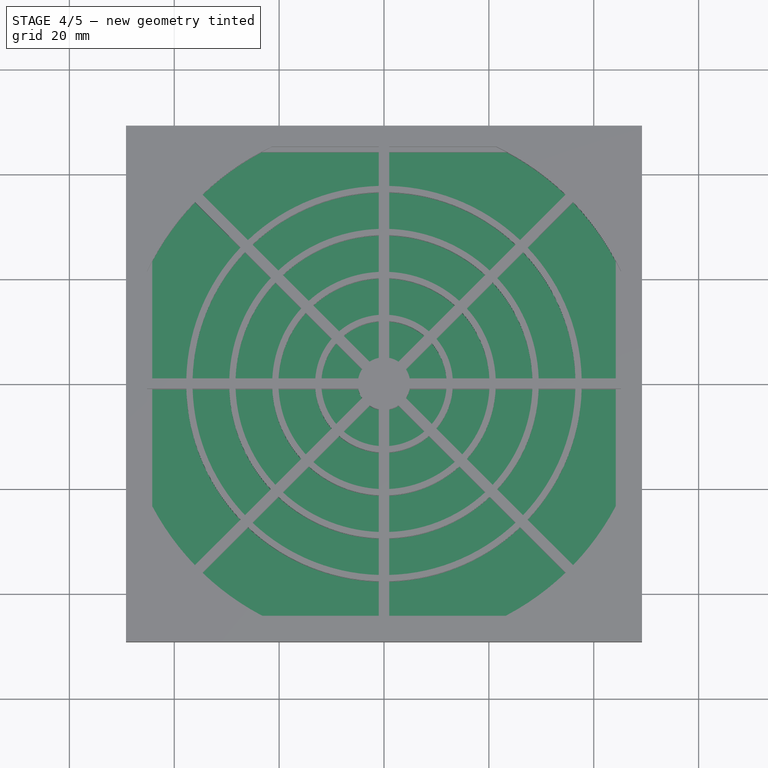
[diagram: stage 4 of 5 — top view after this stage's code; geometry added in this stage tinted green]
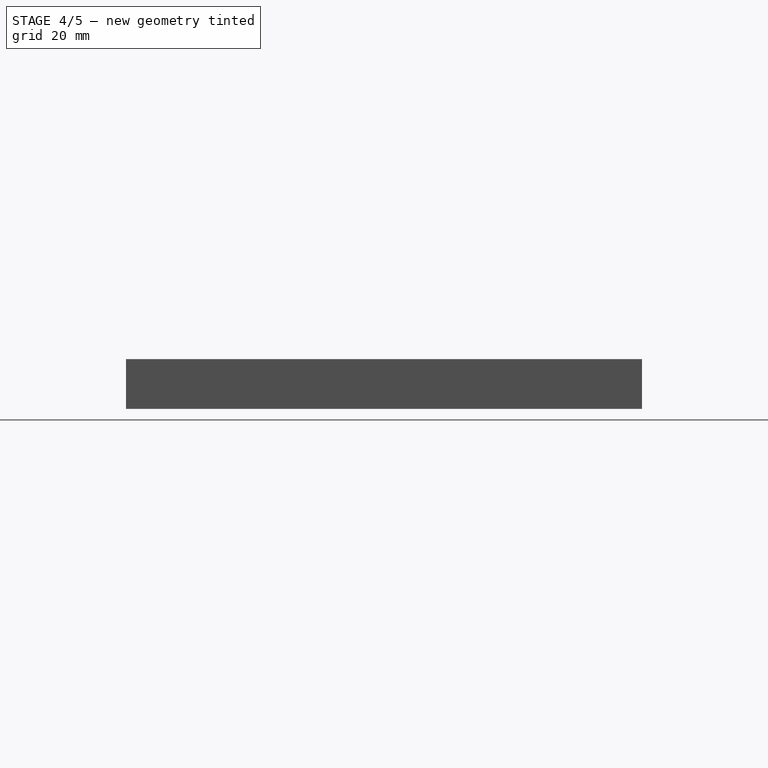
[diagram: stage 4 of 5 — right view after this stage's code; geometry added in this stage tinted green]
FEATURE [Sketcher::SketchObject] Sketch1071
  ExternalGeometry = -> [Pocket514]
  FullyConstrained = true
  MapMode = 5
  Placement = pos=(0,0,1.8) rot=(1,0,0;3.14159rad)
  Support = -> [Pocket514]
  sketch-geometry (6):
    g0: ArcOfCircle CenterX=-41.25 CenterY=41.25 CenterZ=0 NormalX=0 NormalY=0 NormalZ=1 AngleXU=0 Radius=5 StartAngle=4.71239 EndAngle=6.28319
    g1: LineSegment StartX=-36.25 StartY=41.25 StartZ=0 EndX=-36.25 EndY=45 EndZ=0
    g2: LineSegment StartX=-41.25 StartY=36.25 StartZ=0 EndX=-45 EndY=36.25 EndZ=0
    g3: LineSegment StartX=-45 StartY=36.25 StartZ=0 EndX=-45 EndY=45 EndZ=0
    g4: LineSegment StartX=-36.25 StartY=45 StartZ=0 EndX=-45 EndY=45 EndZ=0
    g5: Circle CenterX=-41.25 CenterY=41.25 CenterZ=0 NormalX=0 NormalY=0 NormalZ=1 AngleXU=0 Radius=2.35
  constraints (14):
    c: Vertical(g1)
    c: Horizontal(g2)
    c: Coincident(g3,g2)
    c: Vertical(g3)
    c: Coincident(g4,g1)
    c: Coincident(g4,g3)
    c: Tangent(g1,g0) = -1.5708
    c: Tangent(g2,g0) = 1.5708
    c: Radius(g0) = 5
    c: Coincident(g5,g0)
    c: Horizontal(g4)
    c: Diameter(g5) = 4.7
    c: Coincident(g3,g-4)
    c: Coincident(g-3,g0)
FEATURE [PartDesign::Pad] Pad529
  BaseFeature = -> Pocket514
  Direction = (0,0,-1)
  Length = 10
  Length2 = 10
  Profile = -> Sketch1071
  ReferenceAxis = -> Sketch1071 [N_Axis]
  Type = 3
  UpToFace = -> Pocket514 [Face191]
FEATURE [PartDesign::PolarPattern] PolarPattern030
  Angle = 360
  Axis = -> Sketch1071 [N_Axis]
  BaseFeature = -> Pad529
  Occurrences = 4
  Originals = -> [Pad529]
  Refine = true
FEATURE [PartDesign::Fillet] Fillet179
  Base = -> Pad531 [Edge203]
  BaseFeature = -> Pad531
  Radius = 0.1
  SupportTransform = false
  UseAllEdges = false
FEATURE [PartDesign::PolarPattern] PolarPattern033
  Angle = 360
  Axis = -> Z_Axis526
  BaseFeature = -> Fillet179
  Occurrences = 4
  Originals = -> [Pad531,Fillet179]
  Refine = true
FEATURE [PartDesign::Body] Body301  label="Cover"
  Group = -> [Sketch1072,Pad526,Sketch1073,Pocket515,Sketch1074,Pocket511,PolarPattern028,Sketch1075,Pad530,PolarPattern031,Sketch1076,Pocket516,PolarPattern032,Sketch1077,Pad531,Fillet179,PolarPattern033,Fillet181,Fillet182]
  Origin = -> Origin526
  Tip = -> Fillet182
FEATURE [Sketcher::SketchObject] Sketch1078
  FullyConstrained = true
  MapMode = 5
  Support = -> [XY_Plane523]
  sketch-geometry (5):
    g0: LineSegment StartX=-47 StartY=47 StartZ=0 EndX=-47 EndY=-47 EndZ=0
    g1: LineSegment StartX=-47 StartY=-47 StartZ=0 EndX=47 EndY=-47 EndZ=0
    g2: LineSegment StartX=47 StartY=-47 StartZ=0 EndX=47 EndY=47 EndZ=0
    g3: LineSegment StartX=47 StartY=47 StartZ=0 EndX=-47 EndY=47 EndZ=0
    g4: GeomPoint X=0 Y=0 Z=0
  constraints (12):
    c: Coincident(g0,g1)
    c: Coincident(g1,g2)
    c: Coincident(g2,g3)
    c: Coincident(g3,g0)
    c: Horizontal(g1)
    c: Horizontal(g3)
    c: Vertical(g0)
    c: Vertical(g2)
    c: Symmetric(g1,g0,g4)
    c: Coincident(g4,g-1)
    c: Equal(g2,g1)
    c: DistanceY(g0,g0) = 94
FEATURE [PartDesign::Pad] Pad532
  Direction = (0,0,1)
  Length = 2.1
  Length2 = 10
  Profile = -> Sketch1078
  ReferenceAxis = -> Sketch1078 [N_Axis]
  Type = 0
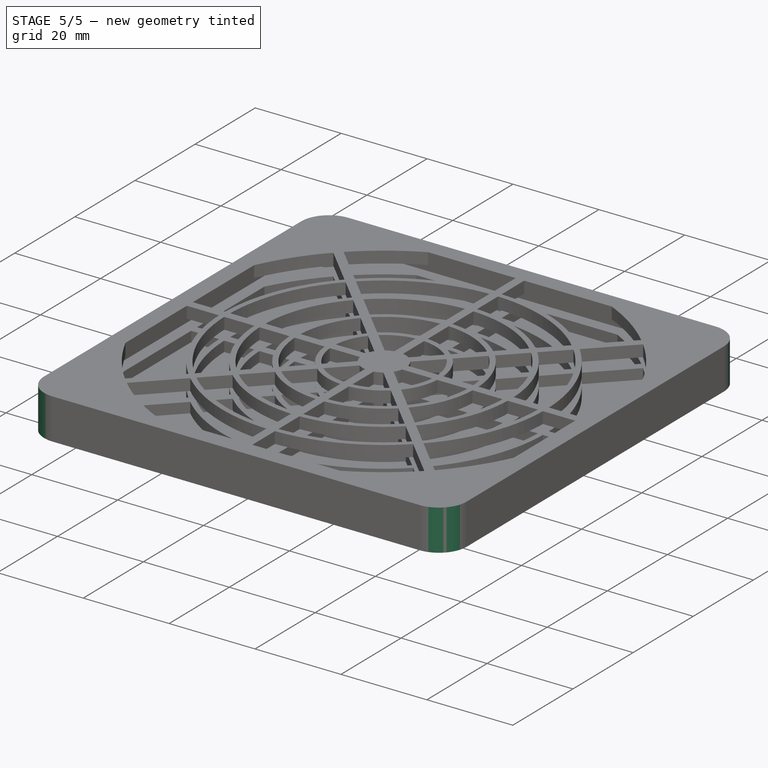
[diagram: stage 5 of 5 — iso view after this stage's code; geometry added in this stage tinted green]
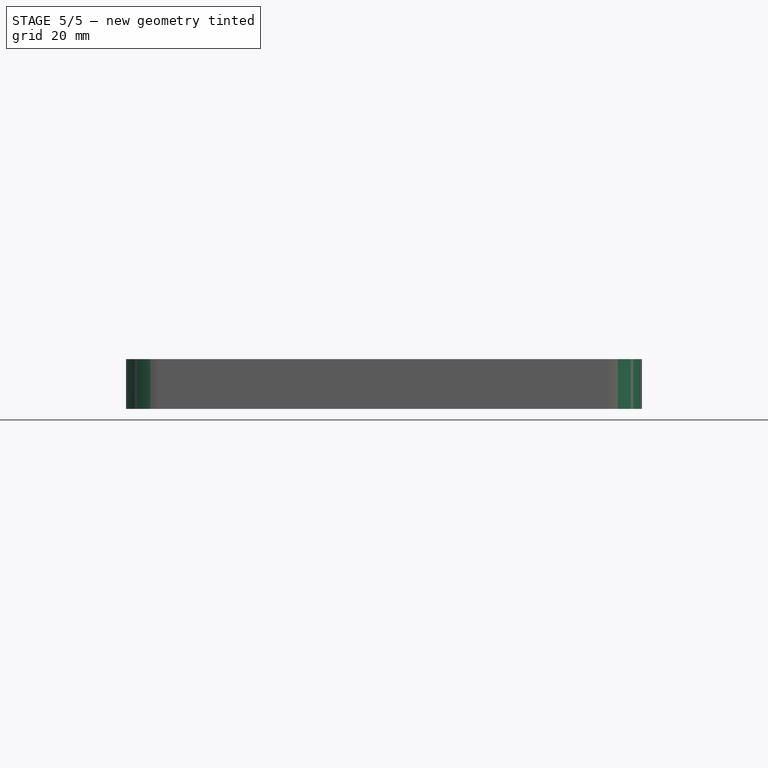
[diagram: stage 5 of 5 — front view after this stage's code; geometry added in this stage tinted green]
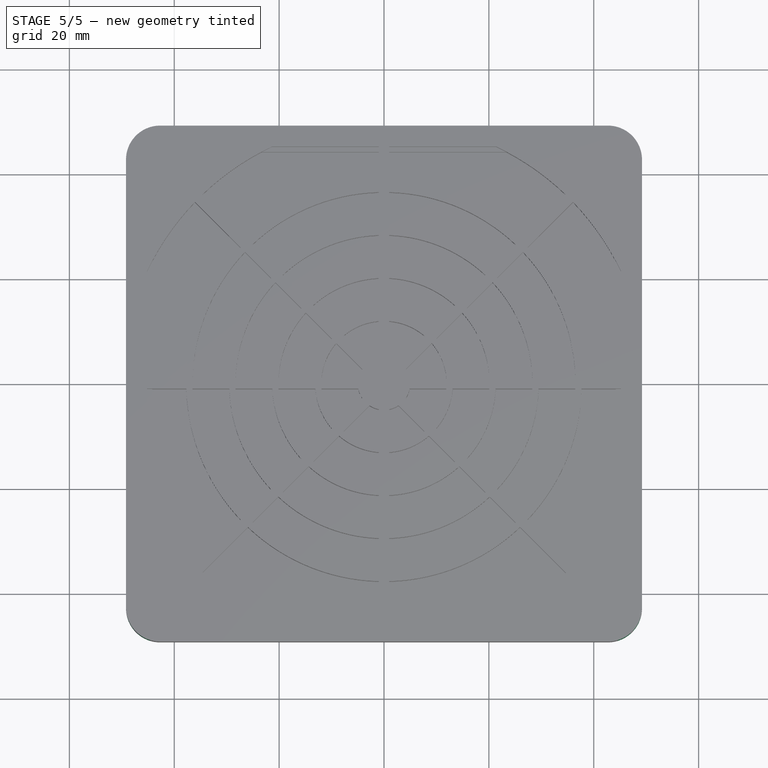
[diagram: stage 5 of 5 — top view after this stage's code; geometry added in this stage tinted green]
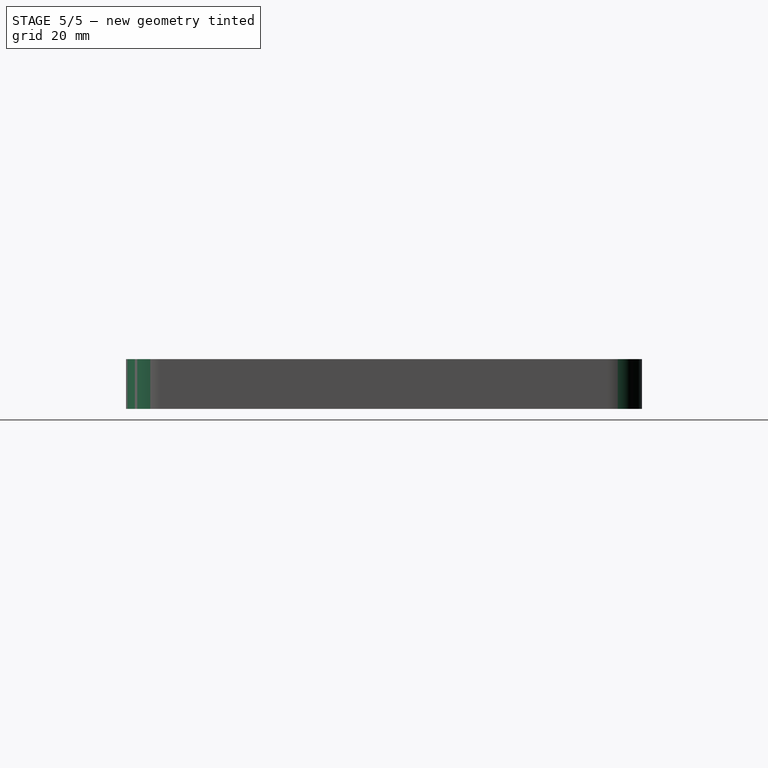
[diagram: stage 5 of 5 — right view after this stage's code; geometry added in this stage tinted green]
FEATURE [PartDesign::Chamfer] Chamfer173
  Angle = 45
  Base = -> PolarPattern030 [Edge131,Edge12,Edge64,Edge181]
  BaseFeature = -> PolarPattern030
  ChamferType = 0
  FlipDirection = true
  Size = 2.1
  Size2 = 2.5
  SupportTransform = false
  UseAllEdges = false
FEATURE [PartDesign::Fillet] Fillet180
  Base = -> Chamfer173 [Edge185,Edge184,Edge197,Edge191]
  BaseFeature = -> Chamfer173
  Radius = 4.5
  SupportTransform = false
  UseAllEdges = false
FEATURE [PartDesign::Fillet] Fillet181
  Base = -> PolarPattern033 [Edge197,Edge220,Edge203,Edge214]
  BaseFeature = -> PolarPattern033
  Radius = 4.7
  SupportTransform = false
  UseAllEdges = false
FEATURE [PartDesign::Fillet] Fillet182
  Base = -> Fillet181 [Edge270,Edge267,Edge272,Edge268]
  BaseFeature = -> Fillet181
  Radius = 6.5
  SupportTransform = false
  UseAllEdges = false
FEATURE [PartDesign::Chamfer] Chamfer172
  Angle = 45
  Base = -> Pad532 [Edge1,Edge8,Edge5,Edge2]
  BaseFeature = -> Pad532
  ChamferType = 0
  FlipDirection = false
  Size = 10
  Size2 = 1
  SupportTransform = false
  UseAllEdges = false
FEATURE [PartDesign::Body] Body302  label="Filter"
  Group = -> [Sketch1078,Pad532,Chamfer172]
  Origin = -> Origin523
  Placement = pos=(0,0,4.6) rot=(0,0,1;0rad)
  Tip = -> Chamfer172
FEATURE [App::Part] Part059120  label="FAN_FILTER_92mm"
  Group = -> [Body300,Body302,Body301]
  Origin = -> Origin525
  Placement = pos=(0,0,0) rot=(1,0,0;3.14159rad)
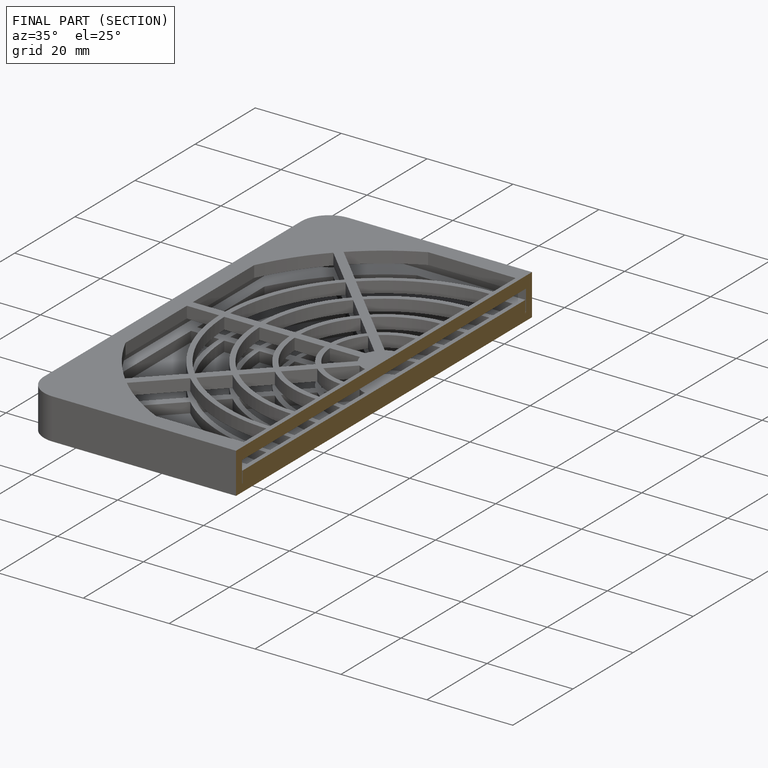
[diagram: finished part — half-section view (interior)]
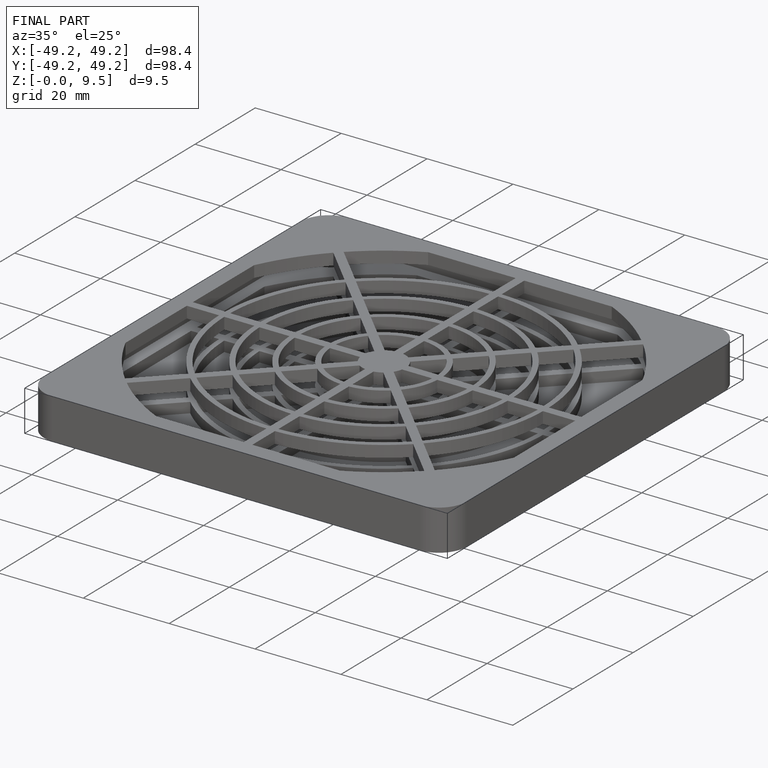
[diagram: finished part — iso view with bounding-box wireframe]
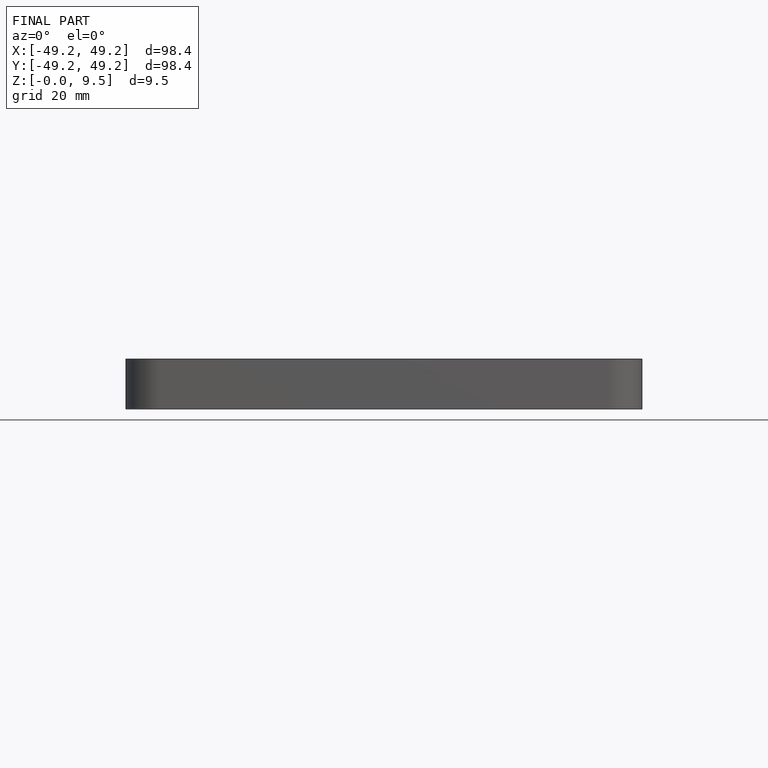
[diagram: finished part — front view with bounding-box wireframe]
